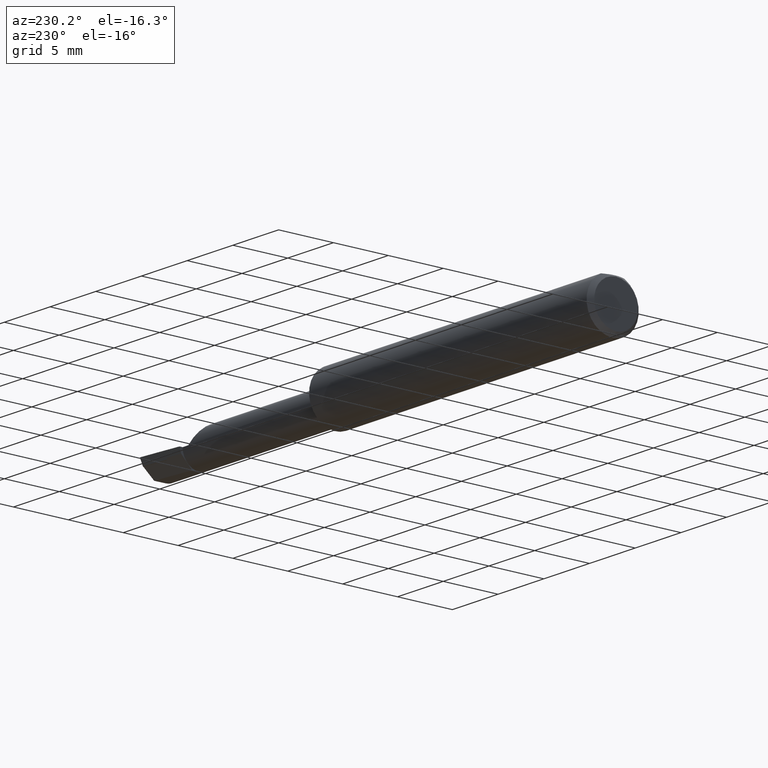
[diagram: clean part render]
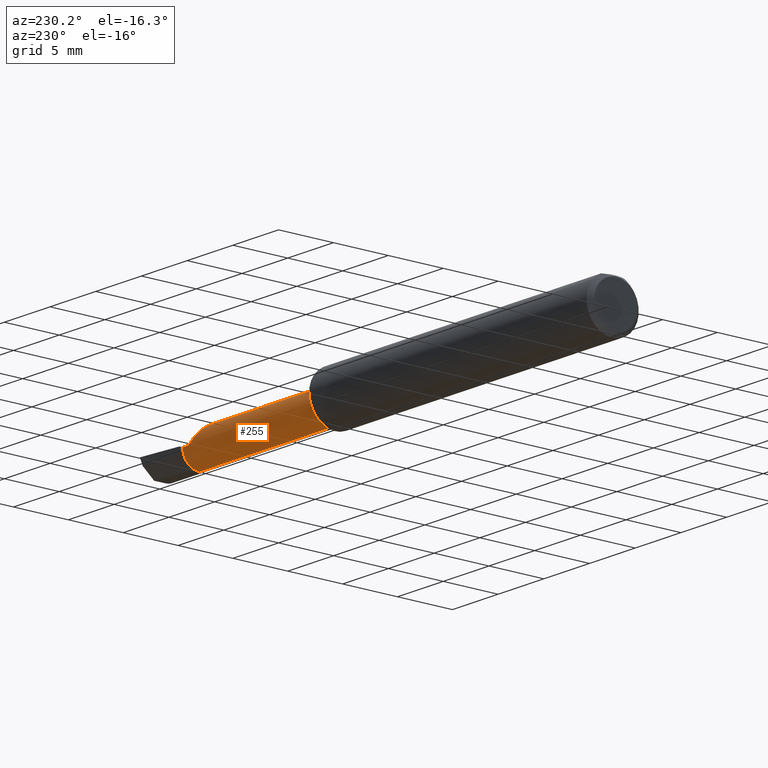
[diagram: same view with one face highlighted and labeled with its STEP entity id]
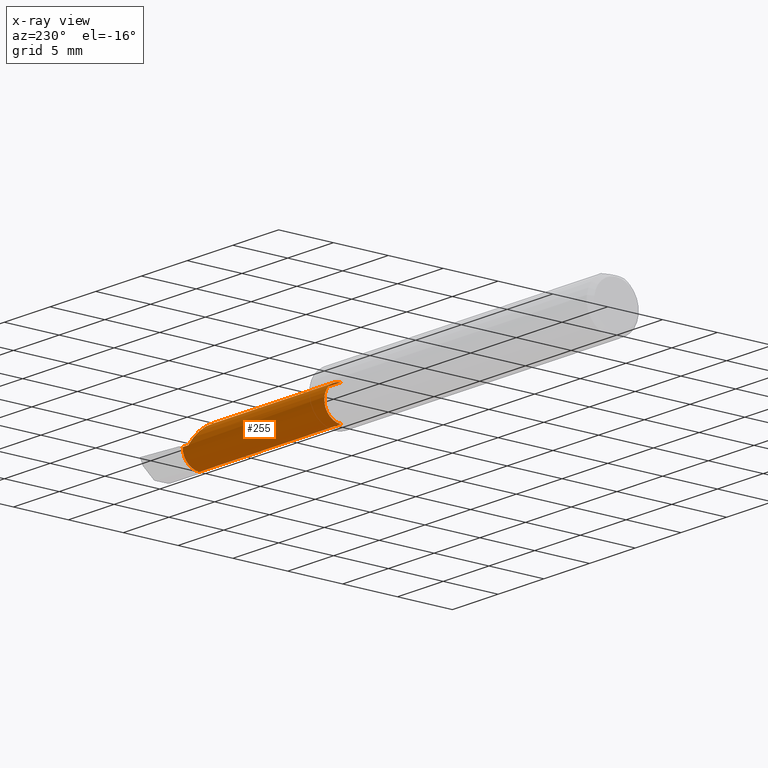
[diagram: x-ray of the same camera — body ghosted, the highlighted face saturated]
A machine part, auxiliary view. The second image highlights one B-rep face of the part: STEP entity #255.
The next image is the same camera in x-ray: the body ghosted, the highlighted face saturated — about 0% of this face is hidden behind the body in this view.
In plain terms, the highlighted cylindrical surface (edge-blend (fillet) strip) has radius 1.524 mm, axis along (-1, -0, -0).
Its self-contained STEP definition (entity closure, byte-faithful):
#18 = FACE_OUTER_BOUND ( 'NONE', #916, .T. ) ;
#36 = DIRECTION ( 'NONE',  ( -1.000000000000000000, -0.000000000000000000, -0.000000000000000000 ) ) ;
#42 = VERTEX_POINT ( 'NONE', #701 ) ;
#91 = EDGE_CURVE ( 'NONE', #193, #295, #603, .T. ) ;
#98 = CARTESIAN_POINT ( 'NONE',  ( 1.209999999999999964, -0.04160000000000000503, 0.000000000000000000 ) ) ;
#156 = DIRECTION ( 'NONE',  ( 1.000000000000000000, 0.000000000000000000, 0.000000000000000000 ) ) ;
#193 = VERTEX_POINT ( 'NONE', #756 ) ;
#215 = EDGE_CURVE ( 'NONE', #193, #250, #1040, .T. ) ;
#228 = VERTEX_POINT ( 'NONE', #483 ) ;
#244 = LINE ( 'NONE', #1166, #689 ) ;
#250 = VERTEX_POINT ( 'NONE', #577 ) ;
#255 = ADVANCED_FACE ( 'NONE', ( #18 ), #307, .T. ) ;
#256 = VECTOR ( 'NONE', #1100, 39.37007874015748143 ) ;
#266 = VERTEX_POINT ( 'NONE', #293 ) ;
#293 = CARTESIAN_POINT ( 'NONE',  ( 1.845000000000000195, -0.04160000000000000503, -0.05999999999999999778 ) ) ;
#295 = VERTEX_POINT ( 'NONE', #818 ) ;
#300 = EDGE_CURVE ( 'NONE', #266, #734, #370, .T. ) ;
#307 = CYLINDRICAL_SURFACE ( 'NONE', #1136, 0.06000000000000001166 ) ;
#314 = CARTESIAN_POINT ( 'NONE',  ( 1.760599999999999499, -0.04160000000000000503, 0.06000000000000001166 ) ) ;
#340 = EDGE_CURVE ( 'NONE', #734, #42, #613, .T. ) ;
#370 = LINE ( 'NONE', #727, #256 ) ;
#380 =( BOUNDED_CURVE ( )  B_SPLINE_CURVE ( 3, ( #845, #401, #754, #314 ),
 .UNSPECIFIED., .F., .T. ) 
 B_SPLINE_CURVE_WITH_KNOTS ( ( 4, 4 ),
 ( 4.722389147058852821, 6.283185307179586232 ),
 .UNSPECIFIED. ) 
 CURVE ( )  GEOMETRIC_REPRESENTATION_ITEM ( )  RATIONAL_B_SPLINE_CURVE ( ( 1.000000000000000000, 0.8070890134517290093, 0.8070890134517290093, 1.000000000000000000 ) ) 
 REPRESENTATION_ITEM ( '' )  );
#382 = DIRECTION ( 'NONE',  ( 0.000000000000000000, 0.000000000000000000, 1.000000000000000000 ) ) ;
#401 = CARTESIAN_POINT ( 'NONE',  ( 1.785132609997154729, 0.01804830858996531173, 0.03546739000284470505 ) ) ;
#426 = AXIS2_PLACEMENT_3D ( 'NONE', #947, #1065, #882 ) ;
#430 = CARTESIAN_POINT ( 'NONE',  ( 1.845000000000000195, -0.04160000000000000503, 0.000000000000000000 ) ) ;
#457 = ORIENTED_EDGE ( 'NONE', *, *, #300, .T. ) ;
#472 = DIRECTION ( 'NONE',  ( -1.000000000000000000, -0.000000000000000000, -0.000000000000000000 ) ) ;
#483 = CARTESIAN_POINT ( 'NONE',  ( 1.760599999999999499, -0.04160000000000000503, 0.06000000000000001166 ) ) ;
#577 = CARTESIAN_POINT ( 'NONE',  ( 1.820000000000000062, 0.01839699992499626083, 0.0005999999999998344982 ) ) ;
#589 = ORIENTED_EDGE ( 'NONE', *, *, #91, .T. ) ;
#603 = LINE ( 'NONE', #983, #690 ) ;
#613 = CIRCLE ( 'NONE', #426, 0.06000000000000001166 ) ;
#646 = ORIENTED_EDGE ( 'NONE', *, *, #1003, .F. ) ;
#653 = ORIENTED_EDGE ( 'NONE', *, *, #340, .T. ) ;
#664 = DIRECTION ( 'NONE',  ( 0.000000000000000000, 0.000000000000000000, 1.000000000000000000 ) ) ;
#674 = AXIS2_PLACEMENT_3D ( 'NONE', #848, #1114, #1023 ) ;
#689 = VECTOR ( 'NONE', #697, 39.37007874015748143 ) ;
#690 = VECTOR ( 'NONE', #156, 39.37007874015748143 ) ;
#696 = ORIENTED_EDGE ( 'NONE', *, *, #908, .F. ) ;
#697 = DIRECTION ( 'NONE',  ( -1.000000000000000000, -0.000000000000000000, -0.000000000000000000 ) ) ;
#701 = CARTESIAN_POINT ( 'NONE',  ( 1.234999999999999876, -0.04160000000000000503, 0.06000000000000001166 ) ) ;
#727 = CARTESIAN_POINT ( 'NONE',  ( 1.209999999999999964, -0.04159999999999999809, -0.06000000000000001166 ) ) ;
#734 = VERTEX_POINT ( 'NONE', #745 ) ;
#745 = CARTESIAN_POINT ( 'NONE',  ( 1.234999999999999876, -0.04159999999999999809, -0.06000000000000001166 ) ) ;
#754 = CARTESIAN_POINT ( 'NONE',  ( 1.760599999999999499, -0.006730866496891304424, 0.06000000000000001166 ) ) ;
#756 = CARTESIAN_POINT ( 'NONE',  ( 1.820000000000000062, 0.01839999999999999969, -2.561107494060246767E-17 ) ) ;
#818 = CARTESIAN_POINT ( 'NONE',  ( 1.845000000000000195, 0.01839999999999999969, -2.561107494060246767E-17 ) ) ;
#845 = CARTESIAN_POINT ( 'NONE',  ( 1.820000000000000062, 0.01839699992499626083, 0.0005999999999998344982 ) ) ;
#846 = CIRCLE ( 'NONE', #1138, 0.05999999999999999778 ) ;
#848 = CARTESIAN_POINT ( 'NONE',  ( 1.820000000000000062, -0.04160000000000000503, 0.000000000000000000 ) ) ;
#882 = DIRECTION ( 'NONE',  ( 0.000000000000000000, 0.000000000000000000, -1.000000000000000000 ) ) ;
#908 = EDGE_CURVE ( 'NONE', #250, #228, #380, .T. ) ;
#916 = EDGE_LOOP ( 'NONE', ( #964, #457, #653, #646, #696, #1056, #589 ) ) ;
#947 = CARTESIAN_POINT ( 'NONE',  ( 1.234999999999999876, -0.04160000000000000503, 0.000000000000000000 ) ) ;
#964 = ORIENTED_EDGE ( 'NONE', *, *, #1060, .T. ) ;
#983 = CARTESIAN_POINT ( 'NONE',  ( 1.209999999999999964, 0.01839999999999999969, -2.561107494060246767E-17 ) ) ;
#1003 = EDGE_CURVE ( 'NONE', #228, #42, #244, .T. ) ;
#1023 = DIRECTION ( 'NONE',  ( 0.000000000000000000, 0.000000000000000000, -1.000000000000000000 ) ) ;
#1040 = CIRCLE ( 'NONE', #674, 0.06000000000000001166 ) ;
#1056 = ORIENTED_EDGE ( 'NONE', *, *, #215, .F. ) ;
#1060 = EDGE_CURVE ( 'NONE', #295, #266, #846, .T. ) ;
#1065 = DIRECTION ( 'NONE',  ( 1.000000000000000000, 0.000000000000000000, 0.000000000000000000 ) ) ;
#1100 = DIRECTION ( 'NONE',  ( -1.000000000000000000, -0.000000000000000000, -0.000000000000000000 ) ) ;
#1114 = DIRECTION ( 'NONE',  ( 1.000000000000000000, -0.000000000000000000, 0.000000000000000000 ) ) ;
#1136 = AXIS2_PLACEMENT_3D ( 'NONE', #98, #36, #664 ) ;
#1138 = AXIS2_PLACEMENT_3D ( 'NONE', #430, #472, #382 ) ;
#1166 = CARTESIAN_POINT ( 'NONE',  ( 1.209999999999999964, -0.04160000000000000503, 0.06000000000000001166 ) ) ;